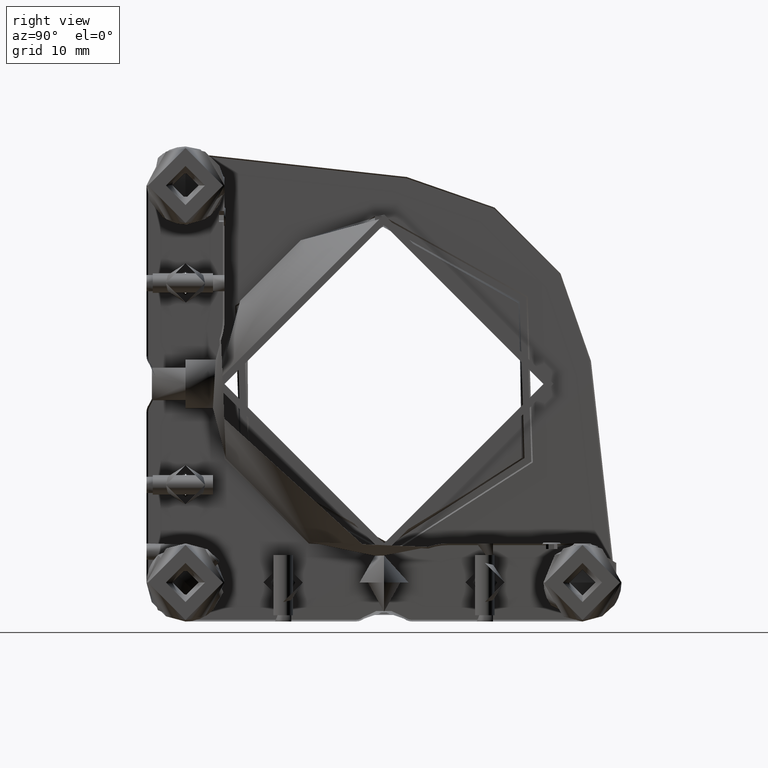
[diagram: clean part render]
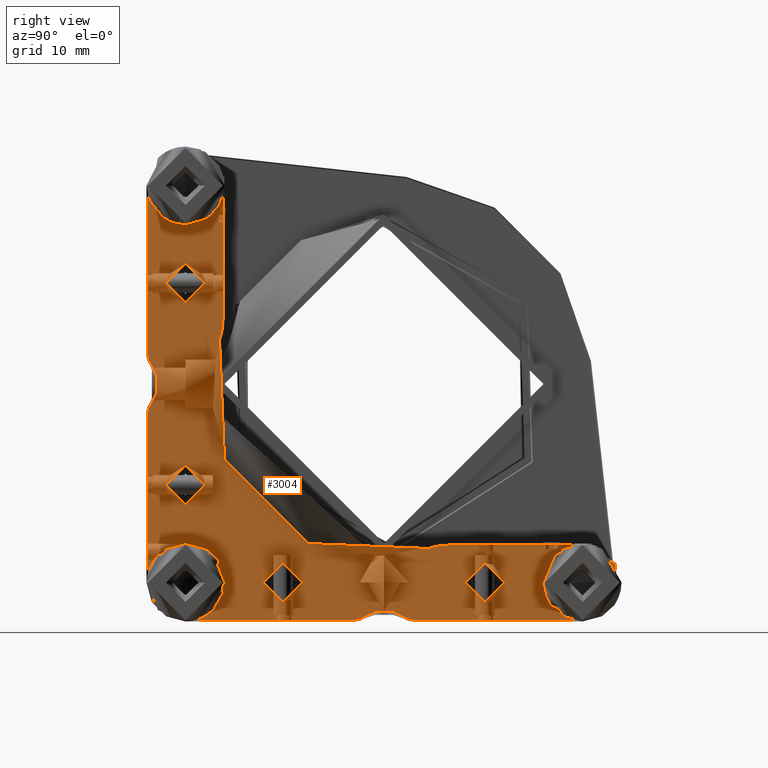
[diagram: same view with one face highlighted and labeled with its STEP entity id]
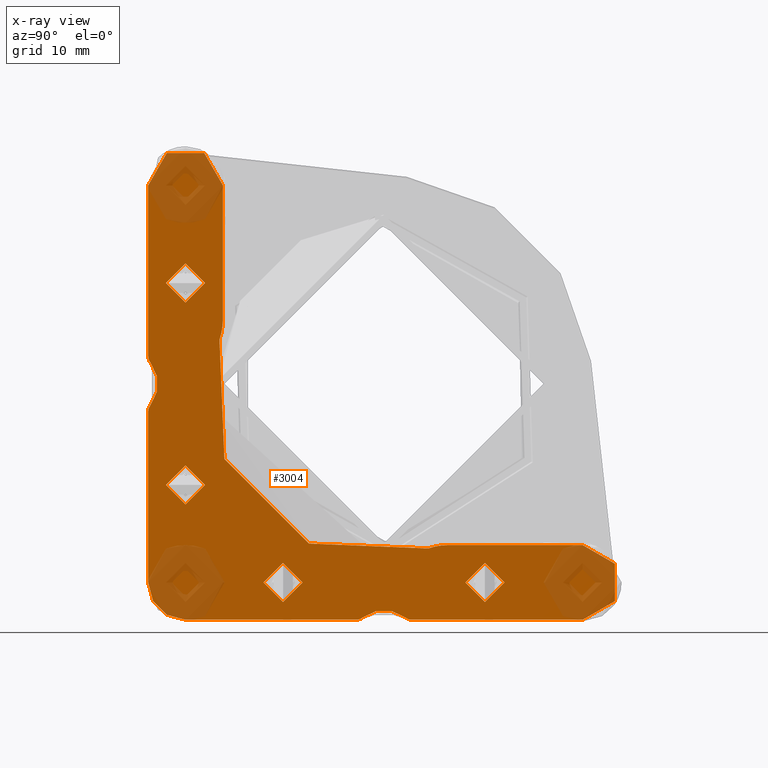
[diagram: x-ray of the same camera — body ghosted, the highlighted face saturated]
A machine part, right view. The second image highlights one B-rep face of the part: STEP entity #3004.
The next image is the same camera in x-ray: the body ghosted, the highlighted face saturated — about 17% of this face is hidden behind the body in this view.
In plain terms, the highlighted planar face has unit normal (1, -0, 0).
Its self-contained STEP definition (entity closure, byte-faithful):
#21 = CARTESIAN_POINT ( 'NONE',  ( 14.52438067708580505, 31.64797911888517845, 17.43651547129345403 ) ) ;
#25 = CARTESIAN_POINT ( 'NONE',  ( 14.52438067708579972, -36.17456092961560188, 23.39754050457363732 ) ) ;
#130 = CARTESIAN_POINT ( 'NONE',  ( 14.52438067708579972, 32.24410129766432220, 17.86142972960387354 ) ) ;
#133 = CARTESIAN_POINT ( 'NONE',  ( 14.52438067708580505, -36.24735745621968874, 23.21330696151593642 ) ) ;
#172 = CARTESIAN_POINT ( 'NONE',  ( 14.52438067708580327, -30.13894796878168947, 25.94374374582073628 ) ) ;
#203 = VERTEX_POINT ( 'NONE', #15910 ) ;
#253 = CARTESIAN_POINT ( 'NONE',  ( 14.52438067708579794, 26.12175594843627735, 25.13857027040318926 ) ) ;
#288 = CARTESIAN_POINT ( 'NONE',  ( 14.52438067708580149, 5.489158803556597022, 26.72071428571425855 ) ) ;
#381 = CARTESIAN_POINT ( 'NONE',  ( 14.52438067708579794, -27.55893120128637364, 19.38429196256151599 ) ) ;
#487 = CARTESIAN_POINT ( 'NONE',  ( 14.52438067708579794, -29.35324463667912553, 25.56183870801029201 ) ) ;
#488 = DIRECTION ( 'NONE',  ( 1.000000000000000000, 8.673617379884036705E-17, 0.000000000000000000 ) ) ;
#563 = EDGE_LOOP ( 'NONE', ( #13598, #2855 ) ) ;
#578 = AXIS2_PLACEMENT_3D ( 'NONE', #16290, #9705, #14712 ) ;
#593 = CARTESIAN_POINT ( 'NONE',  ( 14.52438067708580327, -29.08180073561358725, 17.61572909219930949 ) ) ;
#594 = CARTESIAN_POINT ( 'NONE',  ( 14.52438067708580327, -35.70134228475395588, 79.76472935866036096 ) ) ;
#602 = CARTESIAN_POINT ( 'NONE',  ( 14.52438067708580149, -30.08725783580148772, 86.92387003971825266 ) ) ;
#621 = AXIS2_PLACEMENT_3D ( 'NONE', #11550, #488, #15969 ) ;
#691 = CARTESIAN_POINT ( 'NONE',  ( 14.52438067708579972, -28.17850110655014362, 24.56117267461060649 ) ) ;
#692 = CARTESIAN_POINT ( 'NONE',  ( 14.52438067708580149, -33.93277941437010981, 78.24185982432172182 ) ) ;
#794 = CARTESIAN_POINT ( 'NONE',  ( 14.52438067708579794, -27.30935821521035578, 19.99854848195998969 ) ) ;
#795 = CARTESIAN_POINT ( 'NONE',  ( 14.52438067708580149, -33.53038881643909974, 78.06971806754978616 ) ) ;
#801 = CARTESIAN_POINT ( 'NONE',  ( 14.52438067708580149, -27.40752287086117889, 84.26598934598838753 ) ) ;
#896 = CARTESIAN_POINT ( 'NONE',  ( 14.52438067708579794, -35.60501131107137951, 79.63275040265047267 ) ) ;
#902 = CARTESIAN_POINT ( 'NONE',  ( 14.52438067708579972, -27.63267424146467732, 84.75805406400947106 ) ) ;
#906 = VERTEX_POINT ( 'NONE', #16036 ) ;
#966 = CARTESIAN_POINT ( 'NONE',  ( 14.52438067708579972, 32.31003826075249918, 25.09035226866025070 ) ) ;
#989 = CARTESIAN_POINT ( 'NONE',  ( 14.52438067708579794, 27.93064481245999531, 16.91327876862304791 ) ) ;
#992 = CARTESIAN_POINT ( 'NONE',  ( 14.52438067708579794, -35.83760364309758728, 85.03069932900619676 ) ) ;
#1000 = CARTESIAN_POINT ( 'NONE',  ( 14.52438067708579972, -31.21287174536507791, 77.74999999999998579 ) ) ;
#1071 = CARTESIAN_POINT ( 'NONE',  ( 14.52438067708580149, 29.48485006674771824, 26.24999999999999645 ) ) ;
#1093 = CARTESIAN_POINT ( 'NONE',  ( 14.52438067708580327, 24.87622882512873090, 19.49342146785318519 ) ) ;
#1096 = DIRECTION ( 'NONE',  ( 0.000000000000000000, -3.555324351754441998E-15, -1.000000000000000000 ) ) ;
#1179 = CARTESIAN_POINT ( 'NONE',  ( 14.52438067713278613, -1.317071376953229622, 11.99999999999999645 ) ) ;
#1194 = CARTESIAN_POINT ( 'NONE',  ( 14.52438067708579794, 27.45311508189583449, 17.07612996028124641 ) ) ;
#1279 = CARTESIAN_POINT ( 'NONE',  ( 14.52438067708580149, -36.18023199472971640, 19.62165415749477404 ) ) ;
#1323 = VERTEX_POINT ( 'NONE', #6887 ) ;
#1387 = CARTESIAN_POINT ( 'NONE',  ( 14.52438067708579794, -36.45583537354304582, 20.31281334781983716 ) ) ;
#1405 = CARTESIAN_POINT ( 'NONE',  ( 14.52438067708580149, 27.50480521487461516, 17.05625625417926727 ) ) ;
#1447 = FACE_BOUND ( 'NONE', #13540, .T. ) ;
#1497 = CARTESIAN_POINT ( 'NONE',  ( 14.52438067708579794, -35.40742364560536970, 24.62710963771174377 ) ) ;
#1516 = CARTESIAN_POINT ( 'NONE',  ( 14.52438067708579972, 24.43299602526633763, 20.89632742123032472 ) ) ;
#1556 = FACE_OUTER_BOUND ( 'NONE', #14016, .T. ) ;
#1601 = CARTESIAN_POINT ( 'NONE',  ( 14.52438067708579972, -33.71461188151718602, 17.14251044733165230 ) ) ;
#1619 = CARTESIAN_POINT ( 'NONE',  ( 14.52438067708579794, 28.57872899144322076, 26.24999999999999645 ) ) ;
#1660 = VERTEX_POINT ( 'NONE', #3223 ) ;
#1700 = CARTESIAN_POINT ( 'NONE',  ( 14.52438067708580149, 31.06127446555159111, 17.13683938222352054 ) ) ;
#1703 = CARTESIAN_POINT ( 'NONE',  ( 14.52438067708580505, -34.68432097430352457, 25.28793993411956365 ) ) ;
#1724 = CARTESIAN_POINT ( 'NONE',  ( 14.52438067708580149, 24.92478844737654242, 23.61570803743424918 ) ) ;
#1759 = CARTESIAN_POINT ( 'NONE',  ( 14.52438067708579972, -30.31555466264782339, 87.00768735933070275 ) ) ;
#1804 = CARTESIAN_POINT ( 'NONE',  ( 14.52438067708579972, 30.36994487810992993, 16.86116852331782212 ) ) ;
#1825 = CARTESIAN_POINT ( 'NONE',  ( 14.52438067708579794, 24.73917678106099416, 23.17810295117763886 ) ) ;
#1857 = EDGE_CURVE ( 'NONE', #4540, #906, #3249, .T. ) ;
#1864 = EDGE_CURVE ( 'NONE', #20698, #14601, #9588, .T. ) ;
#1925 = CARTESIAN_POINT ( 'NONE',  ( 14.52438067708579972, 26.92487455903395599, 25.68439713548721670 ) ) ;
#1950 = CARTESIAN_POINT ( 'NONE',  ( 14.52438067708580149, -28.02055705009247433, 18.62656567311664446 ) ) ;
#1958 = CARTESIAN_POINT ( 'NONE',  ( 14.52438067708580149, -31.51514993325796965, 87.25000000000002842 ) ) ;
#1977 = VERTEX_POINT ( 'NONE', #6356 ) ;
#2051 = CARTESIAN_POINT ( 'NONE',  ( 14.52438067708579972, -31.81707137695323340, 16.75000000000000000 ) ) ;
#2136 = AXIS2_PLACEMENT_3D ( 'NONE', #3844, #11676, #7070 ) ;
#2155 = CARTESIAN_POINT ( 'NONE',  ( 14.52438067708580149, -33.31858809125866827, 77.99231264066929725 ) ) ;
#2229 = VERTEX_POINT ( 'NONE', #17834 ) ;
#2240 = CARTESIAN_POINT ( 'NONE',  ( 14.52438067708579972, -31.81707137695321563, 67.50000000000000000 ) ) ;
#2247 = AXIS2_PLACEMENT_3D ( 'NONE', #2780, #18772, #4137 ) ;
#2256 = CARTESIAN_POINT ( 'NONE',  ( 14.52438067708580327, -28.94982177960370962, 17.71206006588186455 ) ) ;
#2358 = CARTESIAN_POINT ( 'NONE',  ( 14.52438067708579794, -29.55901731294528290, 17.31560286450840280 ) ) ;
#2359 = CARTESIAN_POINT ( 'NONE',  ( 14.52438067708580149, -36.32478453869610036, 84.00145151804196075 ) ) ;
#2365 = CARTESIAN_POINT ( 'NONE',  ( 14.52438067708580149, -29.93872553446033535, 78.13683938221862491 ) ) ;
#2452 = VERTEX_POINT ( 'NONE', #14894 ) ;
#2467 = CARTESIAN_POINT ( 'NONE',  ( 14.52438067708579794, -36.56700397473369435, 81.89632742121600018 ) ) ;
#2538 = CARTESIAN_POINT ( 'NONE',  ( 14.52438067708579794, 30.89624606253330086, 25.93028193245020319 ) ) ;
#2556 = ORIENTED_EDGE ( 'NONE', *, *, #11834, .F. ) ;
#2559 = CARTESIAN_POINT ( 'NONE',  ( 14.52438067708580149, 28.88100717934327122, 16.75000000000000355 ) ) ;
#2562 = CARTESIAN_POINT ( 'NONE',  ( 14.52438067708580327, -35.95959908420774553, 84.82567294281945181 ) ) ;
#2640 = CARTESIAN_POINT ( 'NONE',  ( 14.52438067708579794, 33.62668046503207364, 19.82189704882066650 ) ) ;
#2742 = CARTESIAN_POINT ( 'NONE',  ( 14.52438067708580149, 33.54041817571836503, 19.60245949544263411 ) ) ;
#2767 = CARTESIAN_POINT ( 'NONE',  ( 14.52438067708580505, 25.29865771524616491, 18.76472935866166125 ) ) ;
#2780 = CARTESIAN_POINT ( 'NONE',  ( 14.52438067708578906, -35.81707137695325116, 61.97497252743929153 ) ) ;
#2815 = VERTEX_POINT ( 'NONE', #19562 ) ;
#2844 = CARTESIAN_POINT ( 'NONE',  ( 14.52438067708580149, 33.24476733105664294, 19.03617325972458829 ) ) ;
#2855 = ORIENTED_EDGE ( 'NONE', *, *, #7309, .F. ) ;
#2947 = CARTESIAN_POINT ( 'NONE',  ( 14.52438067708580149, 33.48962842097142811, 23.50657853213119708 ) ) ;
#2951 = CARTESIAN_POINT ( 'NONE',  ( 14.52438067708579794, -33.54688491810399142, 17.07612996028118246 ) ) ;
#2986 = EDGE_CURVE ( 'NONE', #7110, #7110, #9193, .T. ) ;
#3004 = ADVANCED_FACE ( 'NONE', ( #12618, #1447, #10563, #14297, #4300, #7817, #11157, #1556 ), #15980, .F. ) ;
#3017 = DIRECTION ( 'NONE',  ( 0.000000000000000000, 0.000000000000000000, -1.000000000000000000 ) ) ;
#3063 = CARTESIAN_POINT ( 'NONE',  ( 14.52438067708580149, -36.00146851244303292, 19.24194593598651082 ) ) ;
#3111 = CARTESIAN_POINT ( 'NONE',  ( 14.52438067708580327, -31.07015261667423189, 26.20831180375581937 ) ) ;
#3187 = CARTESIAN_POINT ( 'NONE',  ( 14.52438067708580149, 26.31567902570001749, 25.28793993412090657 ) ) ;
#3216 = DIRECTION ( 'NONE',  ( -1.000000000000000000, -0.000000000000000000, -0.000000000000000000 ) ) ;
#3223 = CARTESIAN_POINT ( 'NONE',  ( 14.52438067708579972, -31.81707137695321563, 64.50000000000001421 ) ) ;
#3249 = CIRCLE ( 'NONE', #18601, 1.749999999989475308 ) ;
#3250 = VERTEX_POINT ( 'NONE', #12948 ) ;
#3252 = VECTOR ( 'NONE', #14805, 1000.000000000000000 ) ;
#3288 = CARTESIAN_POINT ( 'NONE',  ( 14.52438067708579972, 25.04040091578520943, 23.82567294280685388 ) ) ;
#3362 = VERTEX_POINT ( 'NONE', #18586 ) ;
#3484 = CARTESIAN_POINT ( 'NONE',  ( 14.52438067708579972, 24.67521546130390320, 23.00145151803649668 ) ) ;
#3511 = CARTESIAN_POINT ( 'NONE',  ( 14.52438067708579794, -29.15072713200196830, 17.56814924692091040 ) ) ;
#3607 = CARTESIAN_POINT ( 'NONE',  ( 14.52438067708580505, -27.45391075917725487, 23.37834584250402514 ) ) ;
#3661 = VERTEX_POINT ( 'NONE', #18247 ) ;
#3699 = DIRECTION ( 'NONE',  ( -1.000000000000000000, -0.000000000000000000, -0.000000000000000000 ) ) ;
#3715 = CARTESIAN_POINT ( 'NONE',  ( 14.52438067708580149, -27.17830738036342453, 22.68718665219254405 ) ) ;
#3716 = CARTESIAN_POINT ( 'NONE',  ( 14.52438067708579972, -34.68432097432108208, 86.28793993410415908 ) ) ;
#3794 = B_SPLINE_CURVE_WITH_KNOTS ( 'NONE', 3,
 ( #16873, #2559, #9032, #989, #13727, #15733, #1405, #18864, #1194, #4543, #10597, #20543, #5887, #5993, #10700, #10906, #18660, #17083, #7778, #2767, #16976, #7560, #13937, #1093, #20328, #14156, #7880, #14260, #16243, #1516, #17812, #16041, #6609, #3484, #19276, #1825, #14466, #19381, #17495, #1724, #3288, #8088, #19175, #12578, #9560, #4948, #253, #3187, #9862, #11322, #17601, #1925, #17705, #17391, #15941, #11425, #18963, #8289, #1619, #8190 ),
 .UNSPECIFIED., .F., .F.,
 ( 4, 1, 1, 1, 1, 2, 2, 1, 2, 2, 2, 1, 2, 2, 1, 1, 1, 2, 2, 2, 1, 1, 1, 1, 2, 2, 1, 2, 2, 2, 1, 2, 2, 1, 1, 1, 2, 2, 4 ),
 ( 0.000000000000000000, 0.06250000000000854872, 0.09375000000001289246, 0.1093750000000151684, 0.1171875000000166533, 0.1210937500000172778, 0.1250000000000178746, 0.1562500000000219269, 0.1718750000000237865, 0.1875000000000256462, 0.2500000000000321965, 0.2812500000000350275, 0.2968750000000364153, 0.3125000000000378586, 0.3437500000000403011, 0.3593750000000410227, 0.3671875000000413003, 0.3710937500000414113, 0.3750000000000415779, 0.5000000000000323075, 0.5625000000000280886, 0.5937500000000256462, 0.6093750000000242029, 0.6171875000000236478, 0.6210937500000236478, 0.6250000000000236478, 0.6562500000000224265, 0.6718750000000217604, 0.6875000000000209832, 0.7500000000000174305, 0.7812500000000156541, 0.7968750000000146549, 0.8125000000000135447, 0.8437500000000113243, 0.8593750000000104361, 0.8671875000000101030, 0.8710937500000099920, 0.8750000000000098810, 1.000000000000000000 ),
 .UNSPECIFIED. ) ;
#3795 = EDGE_CURVE ( 'NONE', #14283, #5166, #19328, .T. ) ;
#3820 = CARTESIAN_POINT ( 'NONE',  ( 14.52438067708579794, -27.67454366969432300, 19.17432705718980657 ) ) ;
#3821 = CARTESIAN_POINT ( 'NONE',  ( 14.52438067708580327, -35.87891008495842016, 84.96382674028494364 ) ) ;
#3828 = CARTESIAN_POINT ( 'NONE',  ( 14.52438067708579794, -27.35344677738908103, 80.87476416575657368 ) ) ;
#3838 = DIRECTION ( 'NONE',  ( 0.000000000000000000, 0.000000000000000000, 1.000000000000000000 ) ) ;
#3844 = CARTESIAN_POINT ( 'NONE',  ( 14.52438067705160307, -41.31707137695322984, 52.00000000000013500 ) ) ;
#3847 = ORIENTED_EDGE ( 'NONE', *, *, #10599, .F. ) ;
#3920 = CARTESIAN_POINT ( 'NONE',  ( 14.52438067708580149, -29.91953087239739517, 25.85748955267207805 ) ) ;
#3921 = CARTESIAN_POINT ( 'NONE',  ( 14.52438067708579972, -36.28069597651742129, 84.12523583424446372 ) ) ;
#3928 = CARTESIAN_POINT ( 'NONE',  ( 14.52438067708580505, -28.02055705010142006, 79.62656567310344258 ) ) ;
#3996 = ORIENTED_EDGE ( 'NONE', *, *, #1864, .F. ) ;
#4026 = CARTESIAN_POINT ( 'NONE',  ( 14.52438067708579794, -36.45583537354306003, 81.31281334780958048 ) ) ;
#4032 = CARTESIAN_POINT ( 'NONE',  ( 14.52438067708579794, -27.37331953496746095, 80.82189704882125625 ) ) ;
#4101 = CARTESIAN_POINT ( 'NONE',  ( 14.52438067708579794, 33.64655322261012316, 19.87476416575560378 ) ) ;
#4136 = CARTESIAN_POINT ( 'NONE',  ( 14.52438067708579972, -30.05107670605443104, 78.09045360266081559 ) ) ;
#4137 = DIRECTION ( 'NONE',  ( 0.000000000000000000, -7.116814260417684290E-15, 1.000000000000000000 ) ) ;
#4148 = ORIENTED_EDGE ( 'NONE', *, *, #19248, .F. ) ;
#4209 = CARTESIAN_POINT ( 'NONE',  ( 14.52438067708579972, -33.06935518754000469, 16.91327876862305502 ) ) ;
#4245 = ORIENTED_EDGE ( 'NONE', *, *, #19364, .F. ) ;
#4276 = CARTESIAN_POINT ( 'NONE',  ( 14.52438067708578906, -26.06707137695327248, 61.97497252743929153 ) ) ;
#4300 = FACE_BOUND ( 'NONE', #8365, .T. ) ;
#4311 = CARTESIAN_POINT ( 'NONE',  ( 14.52438067708579794, 33.06719953085097075, 24.23527064133656594 ) ) ;
#4315 = CARTESIAN_POINT ( 'NONE',  ( 14.52438067708579794, -33.53038881644008029, 17.06971806754978260 ) ) ;
#4418 = CARTESIAN_POINT ( 'NONE',  ( 14.52438067708579972, 32.77328089169596126, 18.37289036228215622 ) ) ;
#4450 = DIRECTION ( 'NONE',  ( 0.000000000000000000, 1.000000000000000000, 0.000000000000000000 ) ) ;
#4513 = ORIENTED_EDGE ( 'NONE', *, *, #1857, .F. ) ;
#4519 = CARTESIAN_POINT ( 'NONE',  ( 14.52438067708580682, 32.65750962014806191, 24.74295968162402914 ) ) ;
#4524 = CARTESIAN_POINT ( 'NONE',  ( 14.52438067708579972, -35.61358570381487709, 24.37343432687932321 ) ) ;
#4540 = VERTEX_POINT ( 'NONE', #9386 ) ;
#4543 = CARTESIAN_POINT ( 'NONE',  ( 14.52438067708580327, 27.28538811848415335, 17.14251044733113005 ) ) ;
#4627 = CARTESIAN_POINT ( 'NONE',  ( 14.52438067708579972, -34.69050570383968335, 17.70348567314232824 ) ) ;
#4722 = CARTESIAN_POINT ( 'NONE',  ( 14.52438067708579972, -31.81707137695323340, 26.24999999999999645 ) ) ;
#4726 = CARTESIAN_POINT ( 'NONE',  ( 14.52438067708579972, 30.96866983718218336, 17.09840876550425648 ) ) ;
#4730 = CARTESIAN_POINT ( 'NONE',  ( 14.52438067708579794, -33.60281259108863594, 25.90159123449524969 ) ) ;
#4777 = EDGE_CURVE ( 'NONE', #14583, #3661, #14905, .T. ) ;
#4829 = AXIS2_PLACEMENT_3D ( 'NONE', #6268, #6471, #11080 ) ;
#4830 = CARTESIAN_POINT ( 'NONE',  ( 14.52438067708579794, -36.56710507806301536, 21.80183628940021379 ) ) ;
#4858 = CARTESIAN_POINT ( 'NONE',  ( 14.52438067707971214, 29.18292862304677016, 27.25000000000606448 ) ) ;
#4893 = DIRECTION ( 'NONE',  ( 0.000000000000000000, -1.982541115413988545E-15, 1.000000000000000000 ) ) ;
#4922 = EDGE_CURVE ( 'NONE', #14601, #4540, #11130, .T. ) ;
#4930 = CARTESIAN_POINT ( 'NONE',  ( 14.52438067708580149, -35.06003105858132329, 24.97458099709828971 ) ) ;
#4948 = CARTESIAN_POINT ( 'NONE',  ( 14.52438067708579972, 25.93996894142125598, 24.97458099709925960 ) ) ;
#4980 = CARTESIAN_POINT ( 'NONE',  ( 14.52438067708580327, -28.02913144283450464, 85.36724959735113316 ) ) ;
#5077 = CARTESIAN_POINT ( 'NONE',  ( 14.52438067708579972, -27.51037157902710462, 23.50657853213103010 ) ) ;
#5128 = CIRCLE ( 'NONE', #2136, 5.250000000003584688 ) ;
#5166 = VERTEX_POINT ( 'NONE', #14246 ) ;
#5178 = CARTESIAN_POINT ( 'NONE',  ( 14.52438067708579794, -27.10870059625529294, 20.75323025976613422 ) ) ;
#5278 = CARTESIAN_POINT ( 'NONE',  ( 14.52438067708579794, -27.39320133723454020, 19.77018645884893289 ) ) ;
#5287 = CARTESIAN_POINT ( 'NONE',  ( 14.52438067708579794, -26.59635709123896774, 58.80623018050977180 ) ) ;
#5385 = CARTESIAN_POINT ( 'NONE',  ( 14.52438067708580505, -28.94363705007591037, 25.29651432686680934 ) ) ;
#5386 = CARTESIAN_POINT ( 'NONE',  ( 14.52438067708580149, -36.26082321893903071, 84.17810295117936903 ) ) ;
#5406 = CARTESIAN_POINT ( 'NONE',  ( 14.52438067707362279, 29.18292862304677016, 21.50000000000000000 ) ) ;
#5478 = VERTEX_POINT ( 'NONE', #288 ) ;
#5487 = CARTESIAN_POINT ( 'NONE',  ( 14.52438067708579972, -28.34249037985403064, 24.74295968162557102 ) ) ;
#5488 = CARTESIAN_POINT ( 'NONE',  ( 14.52438067708580149, -34.14274431974644131, 78.35747229273212611 ) ) ;
#5596 = CARTESIAN_POINT ( 'NONE',  ( 14.52438067708579794, -29.15072713199553078, 78.56814924692355362 ) ) ;
#5665 = CARTESIAN_POINT ( 'NONE',  ( 14.52438067708580327, 33.24641315175153267, 23.96505049583747393 ) ) ;
#5694 = CARTESIAN_POINT ( 'NONE',  ( 14.52438067708579617, -36.52544215765119162, 83.24676974023832088 ) ) ;
#5701 = CARTESIAN_POINT ( 'NONE',  ( 14.52438067708579794, -27.41548014245766751, 84.28574121413497267 ) ) ;
#5771 = CARTESIAN_POINT ( 'NONE',  ( 14.52438067708580149, -32.56399013723675040, 16.79168819624418063 ) ) ;
#5793 = DIRECTION ( 'NONE',  ( -1.000000000000000000, 0.000000000000000000, -0.000000000000000000 ) ) ;
#5868 = CARTESIAN_POINT ( 'NONE',  ( 14.52438067708580149, 33.54608924082189247, 23.37834584250412817 ) ) ;
#5871 = CARTESIAN_POINT ( 'NONE',  ( 14.52438067708579794, -33.44234213777077258, 17.03638922315664672 ) ) ;
#5887 = CARTESIAN_POINT ( 'NONE',  ( 14.52438067708580505, 26.71910188276674702, 17.43816129199251108 ) ) ;
#5893 = DIRECTION ( 'NONE',  ( 1.000000000000000000, -0.000000000000000000, -0.000000000000000000 ) ) ;
#5899 = CIRCLE ( 'NONE', #2247, 9.749999999999980460 ) ;
#5917 = EDGE_CURVE ( 'NONE', #203, #9184, #11042, .T. ) ;
#5973 = CARTESIAN_POINT ( 'NONE',  ( 14.52438067708579794, 33.32545633030866128, 19.17432705719548380 ) ) ;
#5993 = CARTESIAN_POINT ( 'NONE',  ( 14.52438067708579972, 26.65222929404588470, 17.47946773385269026 ) ) ;
#6082 = CARTESIAN_POINT ( 'NONE',  ( 14.52438067708580149, -36.40383684103677808, 22.75217204556370731 ) ) ;
#6106 = CARTESIAN_POINT ( 'NONE',  ( 14.52438067708580149, -32.42127100858853339, 87.25000000000004263 ) ) ;
#6119 = EDGE_LOOP ( 'NONE', ( #17704 ) ) ;
#6186 = CARTESIAN_POINT ( 'NONE',  ( 14.52438067708579972, -36.32478453869609325, 23.00145151804826682 ) ) ;
#6268 = CARTESIAN_POINT ( 'NONE',  ( 14.52438067705544356, -31.81707137695322629, 82.49999999999998579 ) ) ;
#6356 = CARTESIAN_POINT ( 'NONE',  ( 14.52438067707362279, 29.18292862304677016, 15.75000000003957901 ) ) ;
#6368 = DIRECTION ( 'NONE',  ( 1.000000000000000000, -0.000000000000000000, -0.000000000000000000 ) ) ;
#6389 = CARTESIAN_POINT ( 'NONE',  ( 14.52438067708579972, -35.95959908420243067, 23.82567294282690185 ) ) ;
#6435 = CIRCLE ( 'NONE', #19465, 1.750000000072304829 ) ;
#6447 = CARTESIAN_POINT ( 'NONE',  ( 14.52438067708579972, -1.317071376953222739, 52.00000000000001421 ) ) ;
#6471 = DIRECTION ( 'NONE',  ( 1.000000000000000000, 1.445602896658512392E-16, 0.000000000000000000 ) ) ;
#6488 = CARTESIAN_POINT ( 'NONE',  ( 14.52438067708579794, 32.05017822039906861, 17.71206006588463566 ) ) ;
#6492 = CARTESIAN_POINT ( 'NONE',  ( 14.52438067708580682, -36.24094141667280411, 23.22981354114956787 ) ) ;
#6589 = EDGE_CURVE ( 'NONE', #3362, #1323, #5128, .T. ) ;
#6609 = CARTESIAN_POINT ( 'NONE',  ( 14.52438067708580505, 24.59616315896323258, 22.75217204554352435 ) ) ;
#6736 = CARTESIAN_POINT ( 'NONE',  ( 14.52438067708580505, -30.03133016281847745, 17.09840876550400779 ) ) ;
#6836 = CARTESIAN_POINT ( 'NONE',  ( 14.52438067708580149, -27.43071837453495476, 23.32285434901662668 ) ) ;
#6887 = CARTESIAN_POINT ( 'NONE',  ( 14.52438067703979030, -37.19207137701416599, 48.75240473582032052 ) ) ;
#6938 = CARTESIAN_POINT ( 'NONE',  ( 14.52438067708579972, -27.37331953496745385, 19.82189704882125625 ) ) ;
#6948 = CARTESIAN_POINT ( 'NONE',  ( 14.52438067708579794, -29.70136333952453001, 86.75814017567357439 ) ) ;
#6997 = CIRCLE ( 'NONE', #12296, 25.25000000000002842 ) ;
#7047 = CARTESIAN_POINT ( 'NONE',  ( 14.52438067708579794, -29.93872553445043394, 17.13683938222271408 ) ) ;
#7048 = CARTESIAN_POINT ( 'NONE',  ( 14.52438067708579794, -34.94418101466707327, 78.90964773134675170 ) ) ;
#7055 = CARTESIAN_POINT ( 'NONE',  ( 14.52438067708579439, -28.75589870236594336, 78.86142972957729569 ) ) ;
#7070 = DIRECTION ( 'NONE',  ( 0.000000000000000000, 1.321694076933807748E-15, -1.000000000000000000 ) ) ;
#7096 = VERTEX_POINT ( 'NONE', #8516 ) ;
#7110 = VERTEX_POINT ( 'NONE', #19879 ) ;
#7145 = CARTESIAN_POINT ( 'NONE',  ( 14.52438067708579972, -28.68996173924333704, 25.09035226865714563 ) ) ;
#7146 = CARTESIAN_POINT ( 'NONE',  ( 14.52438067708580327, -35.29165237405048572, 79.25704031837243235 ) ) ;
#7153 = CARTESIAN_POINT ( 'NONE',  ( 14.52438067708580327, -27.10870059625531070, 81.75323025976615554 ) ) ;
#7248 = CARTESIAN_POINT ( 'NONE',  ( 14.52438067708579972, -36.21866261144872823, 80.71425878586443048 ) ) ;
#7254 = CARTESIAN_POINT ( 'NONE',  ( 14.52438067708580327, -27.55893120128682128, 80.38429196256041109 ) ) ;
#7309 = EDGE_CURVE ( 'NONE', #20242, #2815, #3794, .T. ) ;
#7324 = CARTESIAN_POINT ( 'NONE',  ( 14.52438067708579794, 32.82149889345348015, 24.56117267460787801 ) ) ;
#7351 = CARTESIAN_POINT ( 'NONE',  ( 14.52438067708579972, -33.58306604785060756, 86.90954639733918441 ) ) ;
#7357 = CARTESIAN_POINT ( 'NONE',  ( 14.52438067708579972, -29.99421702794332489, 78.11364699757845642 ) ) ;
#7434 = CARTESIAN_POINT ( 'NONE',  ( 14.52438067708579972, -31.81707137695323340, 16.75000000000000000 ) ) ;
#7467 = CARTESIAN_POINT ( 'NONE',  ( 14.52438067708579972, -28.22671910826945663, 79.37289036231251771 ) ) ;
#7540 = CARTESIAN_POINT ( 'NONE',  ( 14.52438067708580327, 33.82169261964055096, 22.68718665219281405 ) ) ;
#7560 = CARTESIAN_POINT ( 'NONE',  ( 14.52438067708579972, 25.11944409434703118, 19.03494950415061027 ) ) ;
#7595 = EDGE_CURVE ( 'NONE', #2815, #20242, #20524, .T. ) ;
#7614 = CIRCLE ( 'NONE', #621, 9.749999999999971578 ) ;
#7649 = CARTESIAN_POINT ( 'NONE',  ( 14.52438067708580149, -36.52544215765117031, 22.24676974025274490 ) ) ;
#7673 = CARTESIAN_POINT ( 'NONE',  ( 14.52438067708579794, -33.63992572598010611, 86.88635300241256232 ) ) ;
#7759 = CARTESIAN_POINT ( 'NONE',  ( 14.52438067708579972, -35.83760364309855362, 24.03069932900444172 ) ) ;
#7778 = CARTESIAN_POINT ( 'NONE',  ( 14.52438067708579794, 25.39498868892875549, 18.63275040265251903 ) ) ;
#7806 = CARTESIAN_POINT ( 'NONE',  ( 14.52438067708579972, -31.81707137695323340, 26.24999999999999645 ) ) ;
#7817 = FACE_BOUND ( 'NONE', #20449, .T. ) ;
#7819 = ORIENTED_EDGE ( 'NONE', *, *, #19997, .F. ) ;
#7861 = CARTESIAN_POINT ( 'NONE',  ( 14.52438067708580149, -36.20342437937183178, 19.67714565098264856 ) ) ;
#7880 = CARTESIAN_POINT ( 'NONE',  ( 14.52438067708580327, 24.78133738855267509, 19.71425878586192226 ) ) ;
#7919 = DIRECTION ( 'NONE',  ( 1.000000000000000000, -0.000000000000000000, 0.000000000000000000 ) ) ;
#7947 = EDGE_CURVE ( 'NONE', #19578, #5478, #7614, .T. ) ;
#7964 = CARTESIAN_POINT ( 'NONE',  ( 14.52438067708579972, -35.74892213003283103, 18.83365575505032297 ) ) ;
#7984 = EDGE_CURVE ( 'NONE', #3661, #14583, #19756, .T. ) ;
#8073 = CARTESIAN_POINT ( 'NONE',  ( 14.52438067711454828, 3.013055641968952703, 17.50000000000000000 ) ) ;
#8088 = CARTESIAN_POINT ( 'NONE',  ( 14.52438067708579794, 25.12108991503709987, 23.96382674027689319 ) ) ;
#8115 = CARTESIAN_POINT ( 'NONE',  ( 14.52438067708580149, -30.19180061613675647, 25.96361077684335683 ) ) ;
#8121 = CARTESIAN_POINT ( 'NONE',  ( 14.52438067708579972, -30.10375393746742390, 86.93028193245022806 ) ) ;
#8190 = CARTESIAN_POINT ( 'NONE',  ( 14.52438067708579972, 29.18292862304677016, 26.24999999999999645 ) ) ;
#8236 = CARTESIAN_POINT ( 'NONE',  ( 14.52438067708369296, -5.647198395875412835, 17.50000000000000000 ) ) ;
#8289 = CARTESIAN_POINT ( 'NONE',  ( 14.52438067708579794, 27.99591236797024862, 26.13883147668216722 ) ) ;
#8313 = CARTESIAN_POINT ( 'NONE',  ( 14.52438067708580149, -29.81049284482430650, 17.19330020207163656 ) ) ;
#8365 = EDGE_LOOP ( 'NONE', ( #20035 ) ) ;
#8391 = EDGE_LOOP ( 'NONE', ( #3847, #15506 ) ) ;
#8416 = CARTESIAN_POINT ( 'NONE',  ( 14.52438067708580149, -27.63267424146461693, 23.75805406401074293 ) ) ;
#8425 = LINE ( 'NONE', #10094, #3252 ) ;
#8492 = ORIENTED_EDGE ( 'NONE', *, *, #13066, .F. ) ;
#8516 = CARTESIAN_POINT ( 'NONE',  ( 14.52438067708047420, -37.56707137697208765, 56.33012701892233309 ) ) ;
#8519 = CARTESIAN_POINT ( 'NONE',  ( 14.52438067708580327, -34.69050570382738385, 78.70348567312998966 ) ) ;
#8527 = CARTESIAN_POINT ( 'NONE',  ( 14.52438067708580327, -31.07015261668413331, 87.20831180375586200 ) ) ;
#8555 = CARTESIAN_POINT ( 'NONE',  ( 14.52438067708580149, 8.657901150486123854, 27.24999999999996803 ) ) ;
#8625 = CARTESIAN_POINT ( 'NONE',  ( 14.52438067708579794, -29.35202088111746477, 17.43651547129239532 ) ) ;
#8727 = CARTESIAN_POINT ( 'NONE',  ( 14.52438067708580327, -36.07521155261447632, 84.61570803745036073 ) ) ;
#8736 = CARTESIAN_POINT ( 'NONE',  ( 14.52438067708579972, -27.51037157902715435, 84.50657853213010640 ) ) ;
#8754 = ORIENTED_EDGE ( 'NONE', *, *, #13203, .F. ) ;
#8822 = CIRCLE ( 'NONE', #20521, 2.999999999999988898 ) ;
#8840 = CARTESIAN_POINT ( 'NONE',  ( 14.52438067708580149, -27.38678529768677805, 80.78669303848539585 ) ) ;
#8907 = CARTESIAN_POINT ( 'NONE',  ( 14.52438067708579794, 30.91274216419804688, 25.92387003971854043 ) ) ;
#8975 = LINE ( 'NONE', #15350, #16075 ) ;
#9011 = CARTESIAN_POINT ( 'NONE',  ( 14.52438067708580149, 31.08046912760659453, 25.85748955267051841 ) ) ;
#9022 = ORIENTED_EDGE ( 'NONE', *, *, #7984, .F. ) ;
#9032 = CARTESIAN_POINT ( 'NONE',  ( 14.52438067708580505, 28.43600986276327447, 16.79168819624419129 ) ) ;
#9117 = CARTESIAN_POINT ( 'NONE',  ( 14.52438067708579972, 33.20346088919155392, 18.96930067099578565 ) ) ;
#9184 = VERTEX_POINT ( 'NONE', #4722 ) ;
#9192 = ORIENTED_EDGE ( 'NONE', *, *, #4777, .F. ) ;
#9193 = CIRCLE ( 'NONE', #16535, 2.999999999999985345 ) ;
#9225 = CARTESIAN_POINT ( 'NONE',  ( 14.52438067708580327, -32.11899282065675720, 16.75000000000000355 ) ) ;
#9282 = ORIENTED_EDGE ( 'NONE', *, *, #3795, .F. ) ;
#9322 = CARTESIAN_POINT ( 'NONE',  ( 14.52438067708580149, 31.50860156585466498, 25.64252770726042385 ) ) ;
#9326 = CARTESIAN_POINT ( 'NONE',  ( 14.52438067708579794, -35.87891008495502376, 23.96382674028965809 ) ) ;
#9386 = CARTESIAN_POINT ( 'NONE',  ( 14.52438067708369296, -5.647198395875414612, 15.75000000002070522 ) ) ;
#9389 = DIRECTION ( 'NONE',  ( 0.000000000000000000, 0.000000000000000000, -1.000000000000000000 ) ) ;
#9432 = CARTESIAN_POINT ( 'NONE',  ( 14.52438067708579794, 29.78712825463695424, 16.75000000000000000 ) ) ;
#9436 = CARTESIAN_POINT ( 'NONE',  ( 14.52438067708579794, -36.21866261144897692, 19.71425878586445180 ) ) ;
#9497 = CARTESIAN_POINT ( 'NONE',  ( 14.52438067708579972, -1.317071376953222739, 27.24999999999997158 ) ) ;
#9540 = CARTESIAN_POINT ( 'NONE',  ( 14.52438067708579972, 31.44098268705933918, 17.31560286451023600 ) ) ;
#9560 = CARTESIAN_POINT ( 'NONE',  ( 14.52438067708580149, 25.59257635438952150, 24.62710963770978623 ) ) ;
#9588 = CIRCLE ( 'NONE', #578, 5.749999999980898835 ) ;
#9619 = CARTESIAN_POINT ( 'NONE',  ( 14.52438067705688951, -37.56707137698212051, 47.66987298107795823 ) ) ;
#9664 = EDGE_CURVE ( 'NONE', #3250, #3250, #18687, .T. ) ;
#9684 = CARTESIAN_POINT ( 'NONE',  ( 14.52438067708579794, -30.56478756636983007, 26.08672123137694854 ) ) ;
#9697 = DIRECTION ( 'NONE',  ( -0.000000000000000000, -1.000000000000000000, -0.000000000000000000 ) ) ;
#9705 = DIRECTION ( 'NONE',  ( 1.000000000000000000, -0.000000000000000000, -0.000000000000000000 ) ) ;
#9741 = CARTESIAN_POINT ( 'NONE',  ( 14.52438067708579972, -36.28069597651739997, 23.12523583424783524 ) ) ;
#9862 = CARTESIAN_POINT ( 'NONE',  ( 14.52438067708579794, 26.44765798170888615, 25.38427090780244555 ) ) ;
#9867 = DIRECTION ( 'NONE',  ( 1.000000000000000000, -0.000000000000000000, -0.000000000000000000 ) ) ;
#9883 = CARTESIAN_POINT ( 'NONE',  ( 14.52438067708579794, -30.10375393746671335, 25.93028193245020319 ) ) ;
#9892 = CARTESIAN_POINT ( 'NONE',  ( 14.52438067708579794, -30.19180061613907995, 86.96361077684336749 ) ) ;
#9979 = CARTESIAN_POINT ( 'NONE',  ( 14.52438067708579972, -30.08725783580146285, 25.92387003971835213 ) ) ;
#10021 = VERTEX_POINT ( 'NONE', #16411 ) ;
#10085 = CARTESIAN_POINT ( 'NONE',  ( 14.52438067708579794, -34.48341562189258980, 86.43185075308615239 ) ) ;
#10094 = CARTESIAN_POINT ( 'NONE',  ( 14.52438067708579972, -37.56707137695320853, 52.00000000000001421 ) ) ;
#10172 = DIRECTION ( 'NONE',  ( 0.000000000000000000, 0.000000000000000000, 1.000000000000000000 ) ) ;
#10190 = CARTESIAN_POINT ( 'NONE',  ( 14.52438067708580149, -28.57411169532570128, 18.02541900290275478 ) ) ;
#10191 = CARTESIAN_POINT ( 'NONE',  ( 14.52438067708579794, -34.55234201830454310, 86.38427090779181583 ) ) ;
#10283 = CARTESIAN_POINT ( 'NONE',  ( 14.52438067708579972, -29.49139843415079199, 25.64252770726257324 ) ) ;
#10284 = CARTESIAN_POINT ( 'NONE',  ( 14.52438067708579972, -32.56399013722237612, 77.79168819624418063 ) ) ;
#10292 = AXIS2_PLACEMENT_3D ( 'NONE', #8073, #5893, #17089 ) ;
#10295 = CARTESIAN_POINT ( 'NONE',  ( 14.52438067708580149, -27.23030591286970648, 81.24782795445047157 ) ) ;
#10334 = AXIS2_PLACEMENT_3D ( 'NONE', #11180, #12433, #12330 ) ;
#10393 = CARTESIAN_POINT ( 'NONE',  ( 14.52438067708580149, -36.24735745621971716, 84.21330696151495943 ) ) ;
#10400 = CARTESIAN_POINT ( 'NONE',  ( 14.52438067708580327, -27.17830738036344229, 83.68718665219553543 ) ) ;
#10473 = CARTESIAN_POINT ( 'NONE',  ( 14.52438067708579972, 31.71362795205095964, 25.52053226614504666 ) ) ;
#10500 = CARTESIAN_POINT ( 'NONE',  ( 14.52438067708579794, -36.22661988304530922, 80.73401065401144194 ) ) ;
#10538 = AXIS2_PLACEMENT_3D ( 'NONE', #19030, #6368, #15804 ) ;
#10563 = FACE_BOUND ( 'NONE', #8391, .T. ) ;
#10574 = CARTESIAN_POINT ( 'NONE',  ( 14.52438067708580149, 33.36732575853339711, 23.75805406401096320 ) ) ;
#10597 = CARTESIAN_POINT ( 'NONE',  ( 14.52438067708579972, 27.06722058560628952, 17.24185982433412434 ) ) ;
#10599 = EDGE_CURVE ( 'NONE', #9184, #203, #18047, .T. ) ;
#10616 = ORIENTED_EDGE ( 'NONE', *, *, #9664, .F. ) ;
#10680 = CARTESIAN_POINT ( 'NONE',  ( 14.52438067708580327, 33.93286122083116396, 22.10367257878372271 ) ) ;
#10700 = CARTESIAN_POINT ( 'NONE',  ( 14.52438067708579972, 26.30949429615318280, 17.70348567314628241 ) ) ;
#10781 = CARTESIAN_POINT ( 'NONE',  ( 14.52438067708580327, 32.42588830467631311, 18.02541900290477628 ) ) ;
#10835 = EDGE_CURVE ( 'NONE', #5478, #11562, #6997, .T. ) ;
#10884 = CARTESIAN_POINT ( 'NONE',  ( 14.52438067708579794, 33.11477937612725952, 24.16634424495038758 ) ) ;
#10887 = CARTESIAN_POINT ( 'NONE',  ( 14.52438067708580149, -33.63992572597032193, 25.88635300241764980 ) ) ;
#10906 = CARTESIAN_POINT ( 'NONE',  ( 14.52438067708579794, 26.05581898533278107, 17.90964773134379584 ) ) ;
#10915 = CARTESIAN_POINT ( 'NONE',  ( 14.52438067708579972, -1.317071376953222739, 15.75000000000003553 ) ) ;
#10992 = CARTESIAN_POINT ( 'NONE',  ( 14.52438067708580149, -34.34777070595589521, 17.47946773385367791 ) ) ;
#11019 = DIRECTION ( 'NONE',  ( 0.000000000000000000, 1.000000000000000000, 0.000000000000000000 ) ) ;
#11042 = B_SPLINE_CURVE_WITH_KNOTS ( 'NONE', 3,
 ( #7434, #9225, #5771, #4209, #20206, #5871, #12248, #4315, #2951, #1601, #12871, #19258, #17581, #10992, #4627, #14342, #14026, #19156, #15714, #18944, #7964, #14447, #3063, #20415, #1279, #7861, #9436, #12769, #1387, #12455, #4830, #7649, #6082, #6186, #9741, #18846, #133, #6492, #25, #19050, #6389, #9326, #7759, #4524, #1497, #4930, #11202, #1703, #15922, #14240, #17266, #14138, #15825, #20626, #10887, #4730, #20522, #12558, #17374, #11303 ),
 .UNSPECIFIED., .F., .F.,
 ( 4, 1, 1, 1, 1, 2, 2, 1, 2, 2, 2, 1, 2, 2, 1, 1, 1, 2, 2, 2, 1, 1, 1, 1, 2, 2, 1, 2, 2, 2, 1, 2, 2, 1, 1, 1, 2, 2, 4 ),
 ( 0.000000000000000000, 0.06250000000002217670, 0.09375000000003404221, 0.1093750000000400929, 0.1171875000000431044, 0.1210937500000444922, 0.1250000000000458800, 0.1562500000000504041, 0.1718750000000522360, 0.1875000000000540679, 0.2500000000000576761, 0.2812500000000592304, 0.2968750000000604516, 0.3125000000000616174, 0.3437500000000640044, 0.3593750000000646150, 0.3671875000000655032, 0.3710937500000653921, 0.3750000000000652811, 0.5000000000000544009, 0.5625000000000486278, 0.5937500000000458522, 0.6093750000000446310, 0.6171875000000442979, 0.6210937500000440759, 0.6250000000000438538, 0.6562500000000450751, 0.6718750000000450751, 0.6875000000000450751, 0.7500000000000449640, 0.7812500000000451861, 0.7968750000000452971, 0.8125000000000454081, 0.8437500000000444089, 0.8593750000000437428, 0.8671875000000428546, 0.8710937500000415223, 0.8750000000000401901, 1.000000000000000000 ),
 .UNSPECIFIED. ) ;
#11080 = DIRECTION ( 'NONE',  ( 0.000000000000000000, -1.000000000000000000, 0.000000000000000000 ) ) ;
#11130 = LINE ( 'NONE', #17402, #15601 ) ;
#11157 = FACE_BOUND ( 'NONE', #13614, .T. ) ;
#11180 = CARTESIAN_POINT ( 'NONE',  ( 14.52438067708579972, -16.81707137695321563, 21.50000000000000000 ) ) ;
#11198 = CARTESIAN_POINT ( 'NONE',  ( 14.52438067708579972, 29.18292862304677016, 16.75000000000000000 ) ) ;
#11202 = CARTESIAN_POINT ( 'NONE',  ( 14.52438067708580149, -34.87824405156822394, 25.13857027040147685 ) ) ;
#11259 = LINE ( 'NONE', #9497, #14118 ) ;
#11303 = CARTESIAN_POINT ( 'NONE',  ( 14.52438067708579972, -31.81707137695323340, 26.24999999999999645 ) ) ;
#11322 = CARTESIAN_POINT ( 'NONE',  ( 14.52438067708579617, 26.51658437809689772, 25.43185075308032594 ) ) ;
#11355 = CARTESIAN_POINT ( 'NONE',  ( 14.52438067708580149, -27.93280046915216630, 85.23527064134063380 ) ) ;
#11376 = CIRCLE ( 'NONE', #20072, 5.749999999980898835 ) ;
#11425 = CARTESIAN_POINT ( 'NONE',  ( 14.52438067708579794, 27.39718740891132853, 25.90159123449539535 ) ) ;
#11452 = CARTESIAN_POINT ( 'NONE',  ( 14.52438067708580327, -29.70136333952459751, 25.75814017567151026 ) ) ;
#11549 = CARTESIAN_POINT ( 'NONE',  ( 14.52438067708579794, -27.88522062387328404, 24.16634424495044442 ) ) ;
#11550 = CARTESIAN_POINT ( 'NONE',  ( 14.52438067708580149, 8.657901150486123854, 17.49999999999999645 ) ) ;
#11562 = VERTEX_POINT ( 'NONE', #5287 ) ;
#11648 = CARTESIAN_POINT ( 'NONE',  ( 14.52438067708580149, -35.06003105859409175, 85.97458099708710222 ) ) ;
#11659 = CARTESIAN_POINT ( 'NONE',  ( 14.52438067708579972, -31.81707137695324761, 87.25000000000001421 ) ) ;
#11676 = DIRECTION ( 'NONE',  ( -1.000000000000000000, -0.000000000000000000, -0.000000000000000000 ) ) ;
#11758 = CARTESIAN_POINT ( 'NONE',  ( 14.52438067708580327, -27.06703767584345854, 21.19816371061057936 ) ) ;
#11759 = CARTESIAN_POINT ( 'NONE',  ( 14.52438067708579972, -34.07512544100284657, 86.68439713546682412 ) ) ;
#11766 = CARTESIAN_POINT ( 'NONE',  ( 14.52438067708580149, -27.06713877917281863, 83.10367257877885550 ) ) ;
#11776 = DIRECTION ( 'NONE',  ( 1.000000000000000000, -0.000000000000000000, -0.000000000000000000 ) ) ;
#11834 = EDGE_CURVE ( 'NONE', #5166, #1977, #15527, .T. ) ;
#11851 = AXIS2_PLACEMENT_3D ( 'NONE', #6447, #7919, #3017 ) ;
#11859 = CARTESIAN_POINT ( 'NONE',  ( 14.52438067708579972, -29.99421702793735989, 17.11364699758092911 ) ) ;
#11860 = CARTESIAN_POINT ( 'NONE',  ( 14.52438067708579794, -34.34777070595900028, 78.47946773385672259 ) ) ;
#11961 = CARTESIAN_POINT ( 'NONE',  ( 14.52438067708579794, -32.11899282064854333, 77.74999999999997158 ) ) ;
#11969 = CARTESIAN_POINT ( 'NONE',  ( 14.52438067708580327, -29.35202088113040730, 78.43651547128705204 ) ) ;
#12034 = VERTEX_POINT ( 'NONE', #4858 ) ;
#12039 = CARTESIAN_POINT ( 'NONE',  ( 14.52438067708579794, 33.89129940374123606, 20.75323025976187807 ) ) ;
#12046 = DIRECTION ( 'NONE',  ( -3.304235192306410776E-16, 1.000000000000000000, -9.912705576919230850E-16 ) ) ;
#12069 = CARTESIAN_POINT ( 'NONE',  ( 14.52438067708579972, -31.81707137695324761, 77.74999999999998579 ) ) ;
#12076 = CARTESIAN_POINT ( 'NONE',  ( 14.52438067708579972, -27.06703767584346210, 82.19816371061054383 ) ) ;
#12130 = CARTESIAN_POINT ( 'NONE',  ( 14.52438067708840563, 1.930523887229223190, 16.12500000004740031 ) ) ;
#12174 = CARTESIAN_POINT ( 'NONE',  ( 14.52438067708580327, -27.45958182428406857, 80.60245949543786992 ) ) ;
#12193 = ORIENTED_EDGE ( 'NONE', *, *, #14880, .F. ) ;
#12242 = CARTESIAN_POINT ( 'NONE',  ( 14.52438067708579794, 33.93296232415456615, 21.19816371060814575 ) ) ;
#12248 = CARTESIAN_POINT ( 'NONE',  ( 14.52438067708580149, -33.49519478512541326, 17.05625625417926372 ) ) ;
#12296 = AXIS2_PLACEMENT_3D ( 'NONE', #18452, #5793, #1096 ) ;
#12330 = DIRECTION ( 'NONE',  ( 0.000000000000000000, 0.000000000000000000, -1.000000000000000000 ) ) ;
#12346 = CARTESIAN_POINT ( 'NONE',  ( 14.52438067708580149, 32.97944294991059877, 18.62656567311972111 ) ) ;
#12433 = DIRECTION ( 'NONE',  ( -1.000000000000000000, -0.000000000000000000, -0.000000000000000000 ) ) ;
#12452 = CARTESIAN_POINT ( 'NONE',  ( 14.52438067708580149, 29.92984738332577876, 26.20831180375581226 ) ) ;
#12455 = CARTESIAN_POINT ( 'NONE',  ( 14.52438067708579972, -36.56700397473367303, 20.89632742119957598 ) ) ;
#12486 = CIRCLE ( 'NONE', #4829, 5.750000000034560799 ) ;
#12558 = CARTESIAN_POINT ( 'NONE',  ( 14.52438067708579972, -33.00408763203584783, 26.13883147668217433 ) ) ;
#12578 = CARTESIAN_POINT ( 'NONE',  ( 14.52438067708579972, 25.38641429618801482, 24.37343432688538414 ) ) ;
#12618 = FACE_BOUND ( 'NONE', #563, .T. ) ;
#12723 = CARTESIAN_POINT ( 'NONE',  ( 14.52438067708579972, 14.18292862304677016, 21.50000000000000000 ) ) ;
#12769 = CARTESIAN_POINT ( 'NONE',  ( 14.52438067708580149, -36.22661988304528791, 19.73401065401113286 ) ) ;
#12871 = CARTESIAN_POINT ( 'NONE',  ( 14.52438067708579972, -33.93277941439603751, 17.24185982433503739 ) ) ;
#12917 = CARTESIAN_POINT ( 'NONE',  ( 14.52438067708579972, -28.68996173924031368, 86.09035226865100299 ) ) ;
#12948 = CARTESIAN_POINT ( 'NONE',  ( 14.52438067708579972, -31.81707137695323340, 33.50000000000002842 ) ) ;
#12996 = CARTESIAN_POINT ( 'NONE',  ( 14.52438067702797930, -35.81707137695322274, 47.66987298107795823 ) ) ;
#13066 = EDGE_CURVE ( 'NONE', #15328, #20698, #8425, .T. ) ;
#13113 = CARTESIAN_POINT ( 'NONE',  ( 14.52438067708579972, -28.22671910830000641, 18.37289036228618855 ) ) ;
#13120 = CARTESIAN_POINT ( 'NONE',  ( 14.52438067708579794, -29.35324463667909711, 86.56183870801132230 ) ) ;
#13203 = EDGE_CURVE ( 'NONE', #11562, #17827, #5899, .T. ) ;
#13212 = CARTESIAN_POINT ( 'NONE',  ( 14.52438067708579794, -27.41548014245764975, 23.28574121413515385 ) ) ;
#13213 = CARTESIAN_POINT ( 'NONE',  ( 14.52438067708580505, -35.61358570381889166, 85.37343432687224265 ) ) ;
#13316 = CARTESIAN_POINT ( 'NONE',  ( 14.52438067708579972, -35.88055590565871000, 80.03494950416090603 ) ) ;
#13324 = CARTESIAN_POINT ( 'NONE',  ( 14.52438067708580149, -29.49139843415073514, 86.64252770726422170 ) ) ;
#13424 = CARTESIAN_POINT ( 'NONE',  ( 14.52438067708579972, -27.79653911080770001, 18.96930067099656014 ) ) ;
#13425 = CARTESIAN_POINT ( 'NONE',  ( 14.52438067708580327, -35.45564164735294099, 79.43882732538597224 ) ) ;
#13523 = CARTESIAN_POINT ( 'NONE',  ( 14.52438067708580149, -27.75358684824733757, 23.96505049583735669 ) ) ;
#13524 = CARTESIAN_POINT ( 'NONE',  ( 14.52438067708579972, -33.71461188150238542, 78.14251044732405660 ) ) ;
#13531 = CARTESIAN_POINT ( 'NONE',  ( 14.52438067708580149, -27.30935821521037710, 80.99854848195998613 ) ) ;
#13540 = EDGE_LOOP ( 'NONE', ( #9192, #9022 ) ) ;
#13598 = ORIENTED_EDGE ( 'NONE', *, *, #7595, .F. ) ;
#13599 = CARTESIAN_POINT ( 'NONE',  ( 14.52438067708579972, 29.18292862304677016, 26.24999999999999645 ) ) ;
#13614 = EDGE_LOOP ( 'NONE', ( #7819 ) ) ;
#13627 = CARTESIAN_POINT ( 'NONE',  ( 14.52438067708580149, -36.17456092961947434, 84.39754050456825496 ) ) ;
#13634 = CARTESIAN_POINT ( 'NONE',  ( 14.52438067708580149, -28.57411169534098505, 79.02541900288959198 ) ) ;
#13671 = CIRCLE ( 'NONE', #10334, 2.999999999999995559 ) ;
#13699 = CARTESIAN_POINT ( 'NONE',  ( 14.52438067708579794, 33.61321470231298036, 19.78669303848509742 ) ) ;
#13727 = CARTESIAN_POINT ( 'NONE',  ( 14.52438067708580149, 27.68141190873504343, 16.99231264066931146 ) ) ;
#13739 = CARTESIAN_POINT ( 'NONE',  ( 14.52438067708579972, -27.67454366969468182, 80.17432705718891839 ) ) ;
#13778 = DIRECTION ( 'NONE',  ( -0.000000000000000000, -0.000000000000000000, 1.000000000000000000 ) ) ;
#13809 = CARTESIAN_POINT ( 'NONE',  ( 14.52438067708579794, 30.86105203121832119, 25.94374374582072917 ) ) ;
#13912 = CARTESIAN_POINT ( 'NONE',  ( 14.52438067708579972, 33.69064178478812721, 19.99854848195814583 ) ) ;
#13937 = CARTESIAN_POINT ( 'NONE',  ( 14.52438067708580505, 24.99853148756893972, 19.24194593596821079 ) ) ;
#14016 = EDGE_LOOP ( 'NONE', ( #8492, #16064, #19864, #4245, #16871, #4148, #18854, #8754, #19538, #14198, #17224, #19990, #2556, #9282, #12193, #4513, #20486, #3996 ) ) ;
#14023 = CARTESIAN_POINT ( 'NONE',  ( 14.52438067708580327, 30.68444533735655000, 26.00768735933069564 ) ) ;
#14026 = CARTESIAN_POINT ( 'NONE',  ( 14.52438067708580505, -35.29165237404740907, 18.25704031836937702 ) ) ;
#14048 = EDGE_CURVE ( 'NONE', #2229, #7096, #14759, .T. ) ;
#14051 = CARTESIAN_POINT ( 'NONE',  ( 14.52438067708580505, -33.00408763206149843, 87.13883147668222762 ) ) ;
#14118 = VECTOR ( 'NONE', #9697, 1000.000000000000000 ) ;
#14138 = CARTESIAN_POINT ( 'NONE',  ( 14.52438067708579439, -34.07512544096574203, 25.68439713548620773 ) ) ;
#14156 = CARTESIAN_POINT ( 'NONE',  ( 14.52438067708579972, 24.79657562063133014, 19.67714565097782398 ) ) ;
#14190 = DIRECTION ( 'NONE',  ( 0.000000000000000000, 0.000000000000000000, -1.000000000000000000 ) ) ;
#14198 = ORIENTED_EDGE ( 'NONE', *, *, #7947, .F. ) ;
#14235 = CARTESIAN_POINT ( 'NONE',  ( 14.52438067708580505, 31.91819926438819977, 17.61572909220108940 ) ) ;
#14240 = CARTESIAN_POINT ( 'NONE',  ( 14.52438067708580327, -34.48341562190319820, 25.43185075308063148 ) ) ;
#14246 = CARTESIAN_POINT ( 'NONE',  ( 14.52438067710017400, 3.013055641968950038, 15.75000000001440803 ) ) ;
#14260 = CARTESIAN_POINT ( 'NONE',  ( 14.52438067708579794, 24.77338011695470499, 19.73401065401193577 ) ) ;
#14283 = VERTEX_POINT ( 'NONE', #12130 ) ;
#14297 = FACE_BOUND ( 'NONE', #6119, .T. ) ;
#14342 = CARTESIAN_POINT ( 'NONE',  ( 14.52438067708580149, -34.94418101467322657, 17.90964773135295474 ) ) ;
#14389 = CARTESIAN_POINT ( 'NONE',  ( 14.52438067708579794, -31.51514993325228886, 26.25000000000000000 ) ) ;
#14447 = CARTESIAN_POINT ( 'NONE',  ( 14.52438067708580505, -35.88055590565980424, 19.03494950416107656 ) ) ;
#14462 = CIRCLE ( 'NONE', #14783, 5.250000000048245852 ) ;
#14466 = CARTESIAN_POINT ( 'NONE',  ( 14.52438067708579972, 24.75264254378031481, 23.21330696151403217 ) ) ;
#14493 = EDGE_CURVE ( 'NONE', #12034, #19578, #11259, .T. ) ;
#14499 = CARTESIAN_POINT ( 'NONE',  ( 14.52438067708579794, -29.28637204794777915, 86.52053226614428638 ) ) ;
#14583 = VERTEX_POINT ( 'NONE', #15482 ) ;
#14601 = VERTEX_POINT ( 'NONE', #19315 ) ;
#14614 = DIRECTION ( 'NONE',  ( 1.000000000000000000, -0.000000000000000000, -0.000000000000000000 ) ) ;
#14690 = CARTESIAN_POINT ( 'NONE',  ( 14.52438067708580149, -30.05107670605448078, 17.09045360266082980 ) ) ;
#14697 = CARTESIAN_POINT ( 'NONE',  ( 14.52438067708580149, -29.91953087239735254, 86.85748955267328597 ) ) ;
#14712 = DIRECTION ( 'NONE',  ( 0.000000000000000000, 1.206764157205265937E-15, 1.000000000000000000 ) ) ;
#14733 = VECTOR ( 'NONE', #11019, 1000.000000000000000 ) ;
#14759 = LINE ( 'NONE', #18001, #19794 ) ;
#14783 = AXIS2_PLACEMENT_3D ( 'NONE', #1179, #15391, #12046 ) ;
#14787 = EDGE_CURVE ( 'NONE', #1323, #15328, #6435, .T. ) ;
#14805 = DIRECTION ( 'NONE',  ( 0.000000000000000000, 0.000000000000000000, -1.000000000000000000 ) ) ;
#14880 = EDGE_CURVE ( 'NONE', #906, #14283, #14462, .T. ) ;
#14894 = CARTESIAN_POINT ( 'NONE',  ( 14.52438067705544356, -26.06707137693598497, 82.49999999999998579 ) ) ;
#14905 = B_SPLINE_CURVE_WITH_KNOTS ( 'NONE', 3,
 ( #11659, #1958, #8527, #18048, #1759, #9892, #14907, #8121, #602, #14697, #6948, #13324, #13120, #14499, #19720, #12917, #19520, #19308, #4980, #11355, #17742, #19823, #902, #8736, #18562, #15116, #5701, #801, #10400, #11766, #12076, #7153, #10295, #13531, #3828, #4032, #8840, #19923, #12174, #7254, #13739, #18357, #18155, #3928, #7467, #13634, #7055, #16682, #20029, #5596, #11969, #18462, #16581, #2365, #7357, #18251, #4136, #16985, #1000, #16784 ),
 .UNSPECIFIED., .F., .F.,
 ( 4, 1, 1, 1, 1, 2, 2, 1, 2, 2, 2, 1, 2, 2, 1, 1, 1, 2, 2, 2, 1, 1, 1, 1, 2, 2, 1, 2, 2, 2, 1, 2, 2, 1, 1, 1, 2, 2, 4 ),
 ( 0.000000000000000000, 0.06250000000000759115, 0.09375000000001101896, 0.1093750000000123374, 0.1171875000000121847, 0.1210937500000122680, 0.1250000000000123512, 0.1562500000000104083, 0.1718750000000087985, 0.1875000000000071887, 0.2500000000000009992, 0.2812499999999991118, 0.2968749999999980016, 0.3124999999999968359, 0.3437499999999922284, 0.3593749999999900635, 0.3671874999999903411, 0.3710937499999916178, 0.3749999999999928391, 0.5000000000000076605, 0.5625000000000165423, 0.5937500000000196509, 0.6093750000000198730, 0.6171875000000198730, 0.6210937500000197620, 0.6250000000000197620, 0.6562500000000158762, 0.6718750000000128786, 0.6875000000000098810, 0.7500000000000049960, 0.7812500000000026645, 0.7968750000000016653, 0.8125000000000006661, 0.8437500000000002220, 0.8593749999999993339, 0.8671874999999995559, 0.8710937500000001110, 0.8750000000000006661, 1.000000000000000000 ),
 .UNSPECIFIED. ) ;
#14907 = CARTESIAN_POINT ( 'NONE',  ( 14.52438067708580149, -30.13894796878306437, 86.94374374582075404 ) ) ;
#15006 = CARTESIAN_POINT ( 'NONE',  ( 14.52438067708579794, -29.28637204794828008, 25.52053226614403059 ) ) ;
#15007 = CARTESIAN_POINT ( 'NONE',  ( 14.52438067708579794, -33.49519478512343795, 78.05625625417920332 ) ) ;
#15109 = CARTESIAN_POINT ( 'NONE',  ( 14.52438067708579972, -36.56710507806302957, 82.80183628939198570 ) ) ;
#15116 = CARTESIAN_POINT ( 'NONE',  ( 14.52438067708579972, -27.43071837453498318, 84.32285434901629628 ) ) ;
#15211 = CARTESIAN_POINT ( 'NONE',  ( 14.52438067708579972, -34.28089811722144731, 78.43816129198630449 ) ) ;
#15255 = EDGE_CURVE ( 'NONE', #10021, #10021, #13671, .T. ) ;
#15281 = CARTESIAN_POINT ( 'NONE',  ( 14.52438067708580327, 32.05636294992711299, 25.29651432686275214 ) ) ;
#15305 = CARTESIAN_POINT ( 'NONE',  ( 14.52438067708580327, -33.44234213776744014, 78.03638922315664672 ) ) ;
#15328 = VERTEX_POINT ( 'NONE', #9619 ) ;
#15350 = CARTESIAN_POINT ( 'NONE',  ( 14.52438067708579972, -26.06707137695328313, 52.00000000000001421 ) ) ;
#15381 = CARTESIAN_POINT ( 'NONE',  ( 14.52438067708579794, 33.44106879871741711, 19.38429196256871023 ) ) ;
#15391 = DIRECTION ( 'NONE',  ( -1.000000000000000000, -1.652117596189711159E-16, 0.000000000000000000 ) ) ;
#15482 = CARTESIAN_POINT ( 'NONE',  ( 14.52438067708579972, -31.81707137695324761, 87.25000000000001421 ) ) ;
#15493 = CARTESIAN_POINT ( 'NONE',  ( 14.52438067708579972, 30.80819938386325774, 25.96361077684336038 ) ) ;
#15506 = ORIENTED_EDGE ( 'NONE', *, *, #5917, .F. ) ;
#15527 = LINE ( 'NONE', #10915, #14733 ) ;
#15601 = VECTOR ( 'NONE', #4450, 1000.000000000000000 ) ;
#15714 = CARTESIAN_POINT ( 'NONE',  ( 14.52438067708579972, -35.60501131106710915, 18.63275040264622362 ) ) ;
#15733 = CARTESIAN_POINT ( 'NONE',  ( 14.52438067708579972, 27.55765786222923097, 17.03638922315664317 ) ) ;
#15804 = DIRECTION ( 'NONE',  ( 0.000000000000000000, -3.965082230524403693E-15, 1.000000000000000000 ) ) ;
#15825 = CARTESIAN_POINT ( 'NONE',  ( 14.52438067708579972, -33.82364990908559577, 25.80669979792433111 ) ) ;
#15910 = CARTESIAN_POINT ( 'NONE',  ( 14.52438067708579972, -31.81707137695323340, 16.75000000000000000 ) ) ;
#15918 = CARTESIAN_POINT ( 'NONE',  ( 14.52438067708580149, 31.18950715517917160, 17.19330020207301146 ) ) ;
#15922 = CARTESIAN_POINT ( 'NONE',  ( 14.52438067708580149, -34.55234201829334495, 25.38427090780160000 ) ) ;
#15941 = CARTESIAN_POINT ( 'NONE',  ( 14.52438067708579972, 27.36007427402961412, 25.88635300241791271 ) ) ;
#15969 = DIRECTION ( 'NONE',  ( 0.000000000000000000, -1.000000000000000000, -6.049292121355037168E-15 ) ) ;
#15980 = PLANE ( 'NONE',  #11851 ) ;
#16019 = CARTESIAN_POINT ( 'NONE',  ( 14.52438067708580327, 31.84927286799672075, 17.56814924692039526 ) ) ;
#16036 = CARTESIAN_POINT ( 'NONE',  ( 14.52438067711825020, -4.564666641156946980, 16.12500000003830891 ) ) ;
#16041 = CARTESIAN_POINT ( 'NONE',  ( 14.52438067708580327, 24.47455784234883680, 22.24676974022582598 ) ) ;
#16064 = ORIENTED_EDGE ( 'NONE', *, *, #14787, .F. ) ;
#16066 = CARTESIAN_POINT ( 'NONE',  ( 14.52438067708580505, -30.31555466264347842, 26.00768735933069209 ) ) ;
#16075 = VECTOR ( 'NONE', #13778, 1000.000000000000000 ) ;
#16243 = CARTESIAN_POINT ( 'NONE',  ( 14.52438067708580149, 24.54416462645695773, 20.31281334779421499 ) ) ;
#16266 = CARTESIAN_POINT ( 'NONE',  ( 14.52438067708579972, -27.23030591286969582, 20.24782795445045736 ) ) ;
#16290 = CARTESIAN_POINT ( 'NONE',  ( 14.52438067707362279, -31.81707137695323340, 21.50000000000000000 ) ) ;
#16374 = CARTESIAN_POINT ( 'NONE',  ( 14.52438067708580149, -27.75523266894525776, 19.03617325972096808 ) ) ;
#16411 = CARTESIAN_POINT ( 'NONE',  ( 14.52438067708579972, -16.81707137695321563, 18.50000000000000711 ) ) ;
#16475 = CARTESIAN_POINT ( 'NONE',  ( 14.52438067708579972, -27.45958182428380212, 19.60245949543851651 ) ) ;
#16476 = CARTESIAN_POINT ( 'NONE',  ( 14.52438067708580327, -34.28212187281282297, 86.56348452869345067 ) ) ;
#16486 = EDGE_CURVE ( 'NONE', #1977, #12034, #11376, .T. ) ;
#16535 = AXIS2_PLACEMENT_3D ( 'NONE', #12723, #19112, #9389 ) ;
#16574 = CARTESIAN_POINT ( 'NONE',  ( 14.52438067708580327, -28.75589870233922341, 17.86142972960034214 ) ) ;
#16581 = CARTESIAN_POINT ( 'NONE',  ( 14.52438067708579617, -29.81049284484125295, 78.19330020206459153 ) ) ;
#16635 = CARTESIAN_POINT ( 'NONE',  ( 14.52438067707362279, -37.56707137691365972, 21.50000000000000000 ) ) ;
#16674 = CARTESIAN_POINT ( 'NONE',  ( 14.52438067708579972, -27.38678529768677095, 19.78669303848539585 ) ) ;
#16675 = CARTESIAN_POINT ( 'NONE',  ( 14.52438067708580149, -36.20342437937133440, 80.67714565098259527 ) ) ;
#16682 = CARTESIAN_POINT ( 'NONE',  ( 14.52438067708579972, -28.94982177962471681, 78.71206006586373860 ) ) ;
#16774 = CARTESIAN_POINT ( 'NONE',  ( 14.52438067708579972, -36.24094141667233515, 84.22981354115022157 ) ) ;
#16784 = CARTESIAN_POINT ( 'NONE',  ( 14.52438067708579972, -31.81707137695324761, 77.74999999999998579 ) ) ;
#16860 = CARTESIAN_POINT ( 'NONE',  ( 14.52438067708579972, 29.18292862304677016, 16.75000000000000000 ) ) ;
#16871 = ORIENTED_EDGE ( 'NONE', *, *, #14048, .F. ) ;
#16873 = CARTESIAN_POINT ( 'NONE',  ( 14.52438067708579972, 29.18292862304677016, 16.75000000000000000 ) ) ;
#16876 = CARTESIAN_POINT ( 'NONE',  ( 14.52438067708580149, -36.00146851244107182, 80.24194593598626568 ) ) ;
#16877 = CIRCLE ( 'NONE', #10538, 1.750000000123458355 ) ;
#16954 = CARTESIAN_POINT ( 'NONE',  ( 14.52438067708580149, 33.76969408712771070, 20.24782795444725636 ) ) ;
#16976 = CARTESIAN_POINT ( 'NONE',  ( 14.52438067708580327, 25.25107786996376191, 18.83365575505555256 ) ) ;
#16985 = CARTESIAN_POINT ( 'NONE',  ( 14.52438067708579972, -30.63005512189210222, 77.86116852331781502 ) ) ;
#17083 = CARTESIAN_POINT ( 'NONE',  ( 14.52438067708579972, 25.54435835264727572, 18.43882732538857994 ) ) ;
#17086 = CARTESIAN_POINT ( 'NONE',  ( 14.52438067708579972, -33.82364990911344194, 86.80669979790981472 ) ) ;
#17089 = DIRECTION ( 'NONE',  ( 0.000000000000000000, 0.000000000000000000, 1.000000000000000000 ) ) ;
#17161 = CARTESIAN_POINT ( 'NONE',  ( 14.52438067708579794, 33.56928162546453365, 23.32285434901667998 ) ) ;
#17186 = CARTESIAN_POINT ( 'NONE',  ( 14.52438067708579972, -31.81707137695324761, 87.25000000000001421 ) ) ;
#17224 = ORIENTED_EDGE ( 'NONE', *, *, #14493, .F. ) ;
#17266 = CARTESIAN_POINT ( 'NONE',  ( 14.52438067708580327, -34.28212187279159906, 25.56348452870452448 ) ) ;
#17286 = CARTESIAN_POINT ( 'NONE',  ( 14.52438067708580149, -33.69541721947427959, 86.86316061776645370 ) ) ;
#17374 = CARTESIAN_POINT ( 'NONE',  ( 14.52438067708579794, -32.42127100856287569, 26.24999999999999645 ) ) ;
#17391 = CARTESIAN_POINT ( 'NONE',  ( 14.52438067708579972, 27.30458278054184618, 25.86316061777535680 ) ) ;
#17402 = CARTESIAN_POINT ( 'NONE',  ( 14.52438067708579972, -1.317071376953222739, 15.75000000000002842 ) ) ;
#17425 = CARTESIAN_POINT ( 'NONE',  ( 14.52438067708579972, -31.81707137695323340, 36.50000000000002842 ) ) ;
#17495 = CARTESIAN_POINT ( 'NONE',  ( 14.52438067708579794, 24.82543907037541331, 23.39754050455906409 ) ) ;
#17581 = CARTESIAN_POINT ( 'NONE',  ( 14.52438067708579794, -34.28089811723440761, 17.43816129199296938 ) ) ;
#17601 = CARTESIAN_POINT ( 'NONE',  ( 14.52438067708579794, 26.71787812720821975, 25.56348452870508581 ) ) ;
#17704 = ORIENTED_EDGE ( 'NONE', *, *, #2986, .F. ) ;
#17705 = CARTESIAN_POINT ( 'NONE',  ( 14.52438067708579794, 27.17635009091416975, 25.80669979792508784 ) ) ;
#17742 = CARTESIAN_POINT ( 'NONE',  ( 14.52438067708579972, -27.88522062387327338, 85.16634424495082101 ) ) ;
#17812 = CARTESIAN_POINT ( 'NONE',  ( 14.52438067708580682, 24.43289492193700241, 21.80183628938485185 ) ) ;
#17827 = VERTEX_POINT ( 'NONE', #4276 ) ;
#17834 = CARTESIAN_POINT ( 'NONE',  ( 14.52438067707062253, -37.56707137696837862, 82.49999999999998579 ) ) ;
#17838 = CARTESIAN_POINT ( 'NONE',  ( 14.52438067708579794, -27.06713877917280087, 22.10367257877885905 ) ) ;
#17887 = EDGE_CURVE ( 'NONE', #17827, #2452, #8975, .T. ) ;
#17936 = CARTESIAN_POINT ( 'NONE',  ( 14.52438067708580149, -31.21287174536304931, 16.75000000000000355 ) ) ;
#18001 = CARTESIAN_POINT ( 'NONE',  ( 14.52438067708579972, -37.56707137695320853, 52.00000000000001421 ) ) ;
#18040 = CARTESIAN_POINT ( 'NONE',  ( 14.52438067708579794, -30.63005512189008783, 16.86116852331782212 ) ) ;
#18041 = CARTESIAN_POINT ( 'NONE',  ( 14.52438067708579972, -34.87824405159058472, 86.13857027038190495 ) ) ;
#18047 = B_SPLINE_CURVE_WITH_KNOTS ( 'NONE', 3,
 ( #7806, #14389, #3111, #9684, #16066, #8115, #172, #9883, #9979, #3920, #11452, #10283, #487, #15006, #5385, #7145, #5487, #691, #19511, #18146, #11549, #13523, #8416, #5077, #3607, #6836, #13212, #19816, #3715, #17838, #11758, #5178, #16266, #794, #19610, #6938, #16674, #5278, #16475, #381, #3820, #16374, #13424, #1950, #13113, #10190, #16574, #2256, #593, #3511, #8625, #2358, #8313, #7047, #11859, #6736, #14690, #18040, #17936, #2051 ),
 .UNSPECIFIED., .F., .F.,
 ( 4, 1, 1, 1, 1, 2, 2, 1, 2, 2, 2, 1, 2, 2, 1, 1, 1, 2, 2, 2, 1, 1, 1, 1, 2, 2, 1, 2, 2, 2, 1, 2, 2, 1, 1, 1, 2, 2, 4 ),
 ( 0.000000000000000000, 0.06249999999999636402, 0.09374999999999461542, 0.1093749999999938383, 0.1171874999999934636, 0.1210937499999930472, 0.1249999999999926448, 0.1562499999999902855, 0.1718749999999892308, 0.1874999999999882039, 0.2499999999999820699, 0.2812499999999792388, 0.2968749999999780731, 0.3124999999999769629, 0.3437499999999746314, 0.3593749999999732991, 0.3671874999999727995, 0.3710937499999726885, 0.3749999999999725775, 0.4999999999999822364, 0.5624999999999870104, 0.5937499999999891198, 0.6093749999999902300, 0.6171874999999904521, 0.6210937499999904521, 0.6249999999999903411, 0.6562499999999900080, 0.6718749999999903411, 0.6874999999999906741, 0.7499999999999924505, 0.7812499999999936717, 0.7968749999999941158, 0.8124999999999946709, 0.8437499999999964473, 0.8593749999999974465, 0.8671874999999980016, 0.8710937499999982236, 0.8749999999999983347, 1.000000000000000000 ),
 .UNSPECIFIED. ) ;
#18048 = CARTESIAN_POINT ( 'NONE',  ( 14.52438067708580149, -30.56478756637726946, 87.08672123137698406 ) ) ;
#18146 = CARTESIAN_POINT ( 'NONE',  ( 14.52438067708580149, -27.93280046915082693, 24.23527064133791953 ) ) ;
#18147 = CARTESIAN_POINT ( 'NONE',  ( 14.52438067708579972, -36.40383684103679229, 83.75217204555293904 ) ) ;
#18155 = CARTESIAN_POINT ( 'NONE',  ( 14.52438067708579972, -27.79653911080545825, 79.96930067099984285 ) ) ;
#18244 = CARTESIAN_POINT ( 'NONE',  ( 14.52438067708579794, -35.74892213003340657, 79.83365575505035849 ) ) ;
#18247 = CARTESIAN_POINT ( 'NONE',  ( 14.52438067708579972, -31.81707137695324761, 77.74999999999998579 ) ) ;
#18251 = CARTESIAN_POINT ( 'NONE',  ( 14.52438067708579972, -30.03133016282161094, 78.09840876550269684 ) ) ;
#18348 = CARTESIAN_POINT ( 'NONE',  ( 14.52438067708579972, -33.06935518752923286, 77.91327876862300172 ) ) ;
#18357 = CARTESIAN_POINT ( 'NONE',  ( 14.52438067708579794, -27.75523266894547447, 80.03617325972037122 ) ) ;
#18452 = CARTESIAN_POINT ( 'NONE',  ( 14.52438067708580327, -2.717071376953227979, 50.60000000000000142 ) ) ;
#18453 = CARTESIAN_POINT ( 'NONE',  ( 14.52438067708580327, -36.18023199472888507, 80.62165415749467456 ) ) ;
#18462 = CARTESIAN_POINT ( 'NONE',  ( 14.52438067708579794, -29.55901731296790658, 78.31560286449906982 ) ) ;
#18530 = CARTESIAN_POINT ( 'NONE',  ( 14.52438067708579617, 33.58451985754207669, 23.28574121413517872 ) ) ;
#18562 = CARTESIAN_POINT ( 'NONE',  ( 14.52438067708579972, -27.45391075917729395, 84.37834584250344960 ) ) ;
#18586 = CARTESIAN_POINT ( 'NONE',  ( 14.52438067705916325, -37.19207137696697174, 55.24759526420253763 ) ) ;
#18601 = AXIS2_PLACEMENT_3D ( 'NONE', #8236, #14614, #4893 ) ;
#18634 = CARTESIAN_POINT ( 'NONE',  ( 14.52438067708580149, 31.64675536332434191, 25.56183870800893132 ) ) ;
#18660 = CARTESIAN_POINT ( 'NONE',  ( 14.52438067708580149, 25.70834762594962797, 18.25704031837395647 ) ) ;
#18687 = CIRCLE ( 'NONE', #19015, 2.999999999999995559 ) ;
#18736 = CARTESIAN_POINT ( 'NONE',  ( 14.52438067708579972, 30.43521243363018414, 26.08672123137694498 ) ) ;
#18772 = DIRECTION ( 'NONE',  ( 1.000000000000000000, -0.000000000000000000, -0.000000000000000000 ) ) ;
#18840 = CARTESIAN_POINT ( 'NONE',  ( 14.52438067708579794, 32.97086855717046205, 24.36724959734470630 ) ) ;
#18846 = CARTESIAN_POINT ( 'NONE',  ( 14.52438067708579972, -36.26082321893900229, 23.17810295118134079 ) ) ;
#18854 = ORIENTED_EDGE ( 'NONE', *, *, #17887, .F. ) ;
#18864 = CARTESIAN_POINT ( 'NONE',  ( 14.52438067708579972, 27.46961118355992681, 17.06971806754978260 ) ) ;
#18944 = CARTESIAN_POINT ( 'NONE',  ( 14.52438067708579972, -35.70134228475122029, 18.76472935865765379 ) ) ;
#18963 = CARTESIAN_POINT ( 'NONE',  ( 14.52438067708579972, 27.41693395214842610, 25.90954639733917730 ) ) ;
#19015 = AXIS2_PLACEMENT_3D ( 'NONE', #17425, #3216, #14190 ) ;
#19030 = CARTESIAN_POINT ( 'NONE',  ( 14.52438067699597291, -35.81707137695322274, 56.33012701892233309 ) ) ;
#19050 = CARTESIAN_POINT ( 'NONE',  ( 14.52438067708579972, -36.07521155260769774, 23.61570803745975766 ) ) ;
#19112 = DIRECTION ( 'NONE',  ( -1.000000000000000000, -0.000000000000000000, -0.000000000000000000 ) ) ;
#19156 = CARTESIAN_POINT ( 'NONE',  ( 14.52438067708580149, -35.45564164734749113, 18.43882732538057212 ) ) ;
#19175 = CARTESIAN_POINT ( 'NONE',  ( 14.52438067708579794, 25.16239635690070742, 24.03069932900292471 ) ) ;
#19248 = EDGE_CURVE ( 'NONE', #2452, #2229, #12486, .T. ) ;
#19254 = CARTESIAN_POINT ( 'NONE',  ( 14.52438067708580149, 31.00578297206387290, 17.11364699758141583 ) ) ;
#19258 = CARTESIAN_POINT ( 'NONE',  ( 14.52438067708579794, -34.14274431976679836, 17.35747229274257464 ) ) ;
#19276 = CARTESIAN_POINT ( 'NONE',  ( 14.52438067708579972, 24.71930402348262135, 23.12523583424152562 ) ) ;
#19308 = CARTESIAN_POINT ( 'NONE',  ( 14.52438067708579972, -28.17850110655281171, 85.56117267461601728 ) ) ;
#19315 = CARTESIAN_POINT ( 'NONE',  ( 14.52438067707362279, -31.81707137695323340, 15.75000000003957901 ) ) ;
#19328 = CIRCLE ( 'NONE', #10292, 1.749999999958617991 ) ;
#19364 = EDGE_CURVE ( 'NONE', #7096, #3362, #16877, .T. ) ;
#19381 = CARTESIAN_POINT ( 'NONE',  ( 14.52438067708579972, 24.75905858332833276, 23.22981354115137265 ) ) ;
#19465 = AXIS2_PLACEMENT_3D ( 'NONE', #12996, #9867, #10172 ) ;
#19511 = CARTESIAN_POINT ( 'NONE',  ( 14.52438067708580149, -28.02913144283241209, 24.36724959734683793 ) ) ;
#19520 = CARTESIAN_POINT ( 'NONE',  ( 14.52438067708579972, -28.34249037985554764, 85.74295968162866188 ) ) ;
#19538 = ORIENTED_EDGE ( 'NONE', *, *, #10835, .F. ) ;
#19562 = CARTESIAN_POINT ( 'NONE',  ( 14.52438067708579972, 29.18292862304677016, 26.24999999999999645 ) ) ;
#19574 = DIRECTION ( 'NONE',  ( 0.000000000000000000, 0.000000000000000000, -1.000000000000000000 ) ) ;
#19578 = VERTEX_POINT ( 'NONE', #8555 ) ;
#19610 = CARTESIAN_POINT ( 'NONE',  ( 14.52438067708579794, -27.35344677738906682, 19.87476416575659854 ) ) ;
#19611 = CARTESIAN_POINT ( 'NONE',  ( 14.52438067708580149, -35.40742364557986832, 85.62710963773415074 ) ) ;
#19714 = CARTESIAN_POINT ( 'NONE',  ( 14.52438067708579972, -36.12377117487879019, 80.49342146786669616 ) ) ;
#19720 = CARTESIAN_POINT ( 'NONE',  ( 14.52438067708579972, -28.94363705007794252, 86.29651432686566181 ) ) ;
#19756 = B_SPLINE_CURVE_WITH_KNOTS ( 'NONE', 3,
 ( #12069, #11961, #10284, #18348, #2155, #15305, #15007, #795, #19817, #13524, #692, #5488, #15211, #11860, #8519, #7048, #7146, #13425, #896, #594, #18244, #13316, #16876, #19714, #18453, #16675, #7248, #10500, #4026, #2467, #15109, #5694, #18147, #2359, #3921, #5386, #10393, #16774, #13627, #8727, #2562, #3821, #992, #13213, #19611, #11648, #18041, #3716, #10191, #10085, #16476, #11759, #17086, #17286, #7673, #20226, #7351, #14051, #6106, #17186 ),
 .UNSPECIFIED., .F., .F.,
 ( 4, 1, 1, 1, 1, 2, 2, 1, 2, 2, 2, 1, 2, 2, 1, 1, 1, 2, 2, 2, 1, 1, 1, 1, 2, 2, 1, 2, 2, 2, 1, 2, 2, 1, 1, 1, 2, 2, 4 ),
 ( 0.000000000000000000, 0.06249999999998417932, 0.09374999999997671307, 0.1093749999999725775, 0.1171874999999709677, 0.1210937499999706762, 0.1249999999999703848, 0.1562499999999687472, 0.1718749999999679423, 0.1874999999999671652, 0.2499999999999614197, 0.2812499999999570899, 0.2968749999999549805, 0.3124999999999528710, 0.3437499999999478195, 0.3593749999999449884, 0.3671874999999448219, 0.3710937499999447109, 0.3749999999999445999, 0.4999999999999700240, 0.5624999999999826805, 0.5937499999999874545, 0.6093749999999896749, 0.6171874999999905631, 0.6210937499999910072, 0.6249999999999914513, 0.6562499999999934497, 0.6718749999999940048, 0.6874999999999945599, 0.7499999999999993339, 0.7812500000000012212, 0.7968750000000021094, 0.8125000000000029976, 0.8437500000000048850, 0.8593750000000058842, 0.8671875000000056621, 0.8710937500000055511, 0.8750000000000054401, 1.000000000000000000 ),
 .UNSPECIFIED. ) ;
#19794 = VECTOR ( 'NONE', #19574, 1000.000000000000000 ) ;
#19802 = DIRECTION ( 'NONE',  ( 0.000000000000000000, 0.000000000000000000, -1.000000000000000000 ) ) ;
#19816 = CARTESIAN_POINT ( 'NONE',  ( 14.52438067708579794, -27.40752287086116468, 23.26598934598846569 ) ) ;
#19817 = CARTESIAN_POINT ( 'NONE',  ( 14.52438067708580149, -33.54688491810586726, 78.07612996028208840 ) ) ;
#19823 = CARTESIAN_POINT ( 'NONE',  ( 14.52438067708580505, -27.75358684824738376, 84.96505049583663549 ) ) ;
#19864 = ORIENTED_EDGE ( 'NONE', *, *, #6589, .F. ) ;
#19879 = CARTESIAN_POINT ( 'NONE',  ( 14.52438067708579972, 14.18292862304677016, 18.50000000000001776 ) ) ;
#19923 = CARTESIAN_POINT ( 'NONE',  ( 14.52438067708579972, -27.39320133723454020, 80.77018645884902526 ) ) ;
#19990 = ORIENTED_EDGE ( 'NONE', *, *, #16486, .F. ) ;
#19991 = CARTESIAN_POINT ( 'NONE',  ( 14.52438067708579972, 33.59247712913871453, 23.26598934598845503 ) ) ;
#19997 = EDGE_CURVE ( 'NONE', #1660, #1660, #8822, .T. ) ;
#20029 = CARTESIAN_POINT ( 'NONE',  ( 14.52438067708579972, -29.08180073562697032, 78.61572909218776317 ) ) ;
#20035 = ORIENTED_EDGE ( 'NONE', *, *, #15255, .F. ) ;
#20072 = AXIS2_PLACEMENT_3D ( 'NONE', #5406, #11776, #3838 ) ;
#20202 = CARTESIAN_POINT ( 'NONE',  ( 14.52438067708579972, 31.29863666048234094, 25.75814017566875691 ) ) ;
#20206 = CARTESIAN_POINT ( 'NONE',  ( 14.52438067708579972, -33.31858809126496368, 16.99231264066931502 ) ) ;
#20226 = CARTESIAN_POINT ( 'NONE',  ( 14.52438067708579794, -33.60281259109380159, 86.90159123449259937 ) ) ;
#20242 = VERTEX_POINT ( 'NONE', #16860 ) ;
#20303 = CARTESIAN_POINT ( 'NONE',  ( 14.52438067708579794, 33.60679866276517203, 19.77018645884841774 ) ) ;
#20328 = CARTESIAN_POINT ( 'NONE',  ( 14.52438067708579972, 24.81976800527551319, 19.62165415748677333 ) ) ;
#20415 = CARTESIAN_POINT ( 'NONE',  ( 14.52438067708579794, -36.12377117488024680, 19.49342146786689867 ) ) ;
#20449 = EDGE_LOOP ( 'NONE', ( #10616 ) ) ;
#20486 = ORIENTED_EDGE ( 'NONE', *, *, #4922, .F. ) ;
#20518 = CARTESIAN_POINT ( 'NONE',  ( 14.52438067708579794, 30.94892329394553343, 17.09045360266082980 ) ) ;
#20521 = AXIS2_PLACEMENT_3D ( 'NONE', #2240, #3699, #19802 ) ;
#20522 = CARTESIAN_POINT ( 'NONE',  ( 14.52438067708580149, -33.58306604785140337, 25.90954639733918441 ) ) ;
#20524 = B_SPLINE_CURVE_WITH_KNOTS ( 'NONE', 3,
 ( #13599, #1071, #12452, #18736, #14023, #15493, #13809, #2538, #8907, #9011, #20202, #9322, #18634, #10473, #15281, #966, #4519, #7324, #18840, #4311, #10884, #5665, #10574, #2947, #5868, #17161, #18530, #19991, #7540, #10680, #12242, #12039, #16954, #13912, #4101, #2640, #13699, #20303, #2742, #15381, #5973, #2844, #9117, #12346, #4418, #10781, #130, #6488, #14235, #16019, #21, #9540, #15918, #1700, #19254, #4726, #20518, #1804, #9432, #11198 ),
 .UNSPECIFIED., .F., .F.,
 ( 4, 1, 1, 1, 1, 2, 2, 1, 2, 2, 2, 1, 2, 2, 1, 1, 1, 2, 2, 2, 1, 1, 1, 1, 2, 2, 1, 2, 2, 2, 1, 2, 2, 1, 1, 1, 2, 2, 4 ),
 ( 0.000000000000000000, 0.06249999999999980571, 0.09374999999999977796, 0.1093749999999995282, 0.1171874999999993894, 0.1210937499999991118, 0.1249999999999988343, 0.1562499999999976130, 0.1718749999999971412, 0.1874999999999966693, 0.2499999999999985290, 0.2812499999999989453, 0.2968749999999994449, 0.3124999999999999445, 0.3437500000000009437, 0.3593750000000011102, 0.3671875000000014988, 0.3710937500000013878, 0.3750000000000012768, 0.5000000000000083267, 0.5625000000000122125, 0.5937500000000136557, 0.6093750000000147660, 0.6171875000000153211, 0.6210937500000156541, 0.6250000000000158762, 0.6562500000000172085, 0.6718750000000174305, 0.6875000000000177636, 0.7500000000000180966, 0.7812500000000185407, 0.7968750000000187628, 0.8125000000000188738, 0.8437500000000180966, 0.8593750000000173195, 0.8671875000000170974, 0.8710937500000167644, 0.8750000000000163203, 1.000000000000000000 ),
 .UNSPECIFIED. ) ;
#20543 = CARTESIAN_POINT ( 'NONE',  ( 14.52438067708579617, 26.85725568023501353, 17.35747229274185344 ) ) ;
#20626 = CARTESIAN_POINT ( 'NONE',  ( 14.52438067708580327, -33.69541721945805079, 25.86316061777493402 ) ) ;
#20698 = VERTEX_POINT ( 'NONE', #16635 ) ;